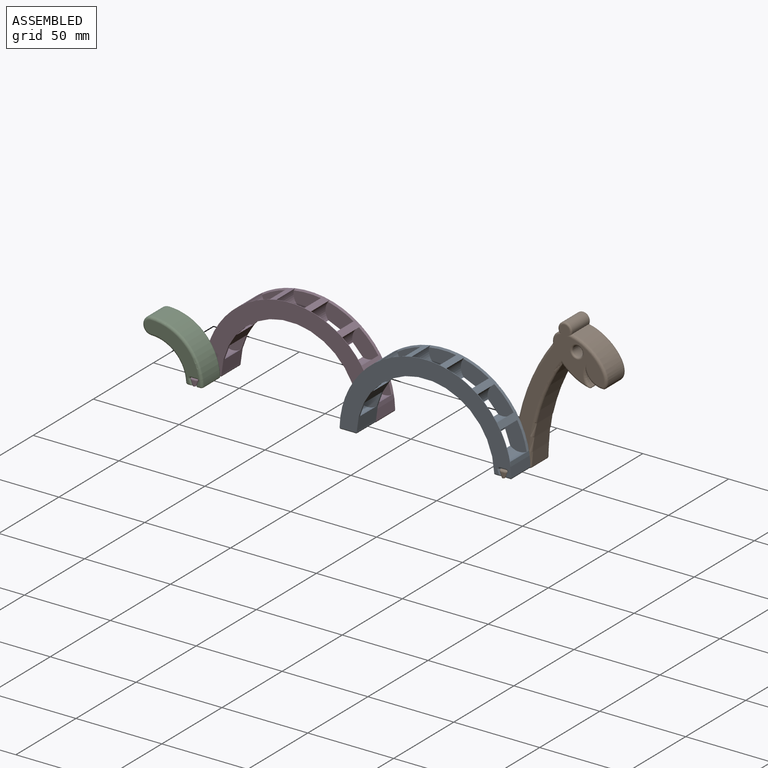
[diagram: assembled view]
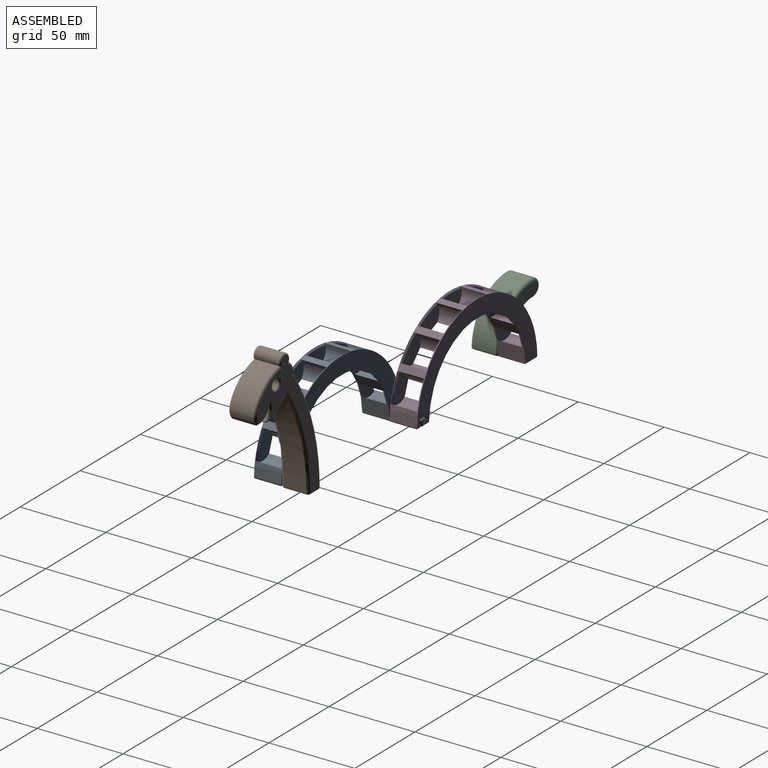
[diagram: assembled view, second angle]
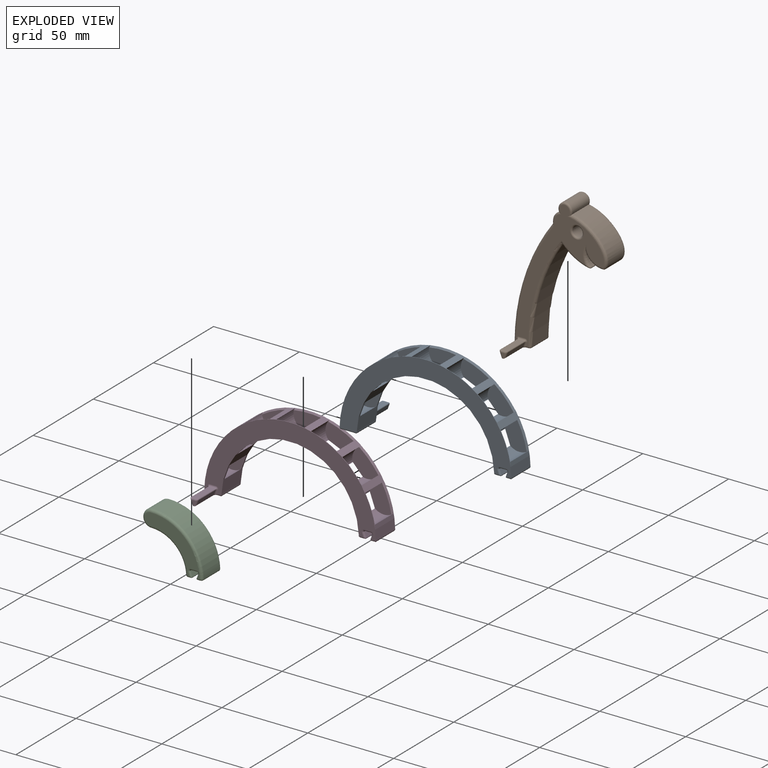
[diagram: exploded view]
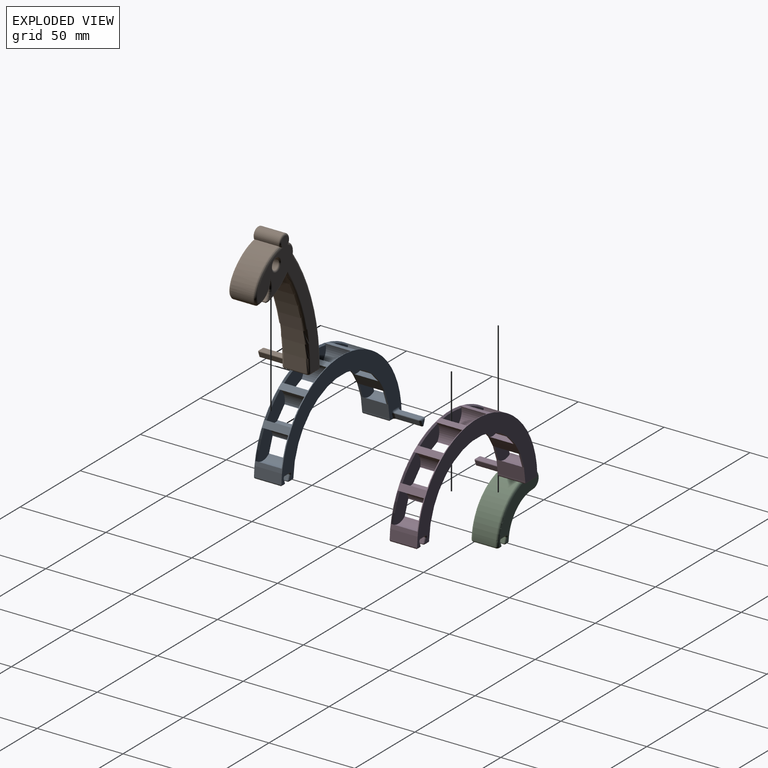
[diagram: exploded view, second angle]
ASSEMBLY  parts=4 mates=3
PART A: 142 faces, bbox 100x32x50.3 mm
  f0: plane 31x8mm, normal (0,0,-1), area 124.3mm2, adj f103,f106,f107,f109,f110,f114,f115,f118
  f1: plane 8.39x1mm, normal (0,0,-1), area 8.4mm2, adj f21,f32,f41,f54
  f2: plane 7.7x3.32mm, normal (-0.4,0,-0.92), area 8.4mm2, adj f21,f33,f38,f82
  f3: plane 8.12x2.95mm, normal (-0.94,0,-0.34), area 8.6mm2, adj f21,f28,f37,f76
  f4: plane 6.1x5.76mm, normal (-0.73,0,-0.69), area 8.4mm2, adj f21,f35,f40,f71
  f5: plane 7.7x3.32mm, normal (0.4,0,-0.92), area 8.4mm2, adj f21,f30,f44,f88
  f6: plane 6.1x5.76mm, normal (0.73,0,-0.69), area 8.4mm2, adj f21,f42,f47,f60
  f7: plane 8.12x2.95mm, normal (0.94,0,-0.34), area 8.6mm2, adj f21,f29,f45,f65
  f8: cylinder r=40mm len=16mm, axis (0,1,0), area 10mm2, adj f9,f21,f29,f122,f124,f126
  f9: plane 99.98x49mm, normal (0,-1,0), area 1364.1mm2, adj f8,f10,f20,f28,f29,f30,f31,f32
  f10: cylinder r=50mm len=99.98mm, axis (0,1,0), area 698.6mm2, adj f9,f21,f50,f51,f56,f57,f61,f62
  f11: plane 14x2.2mm, normal (0,0,-1), area 30.8mm2, adj f12,f137,f139,f141
  f12: cylinder r=0.5mm len=14mm, axis (0,1,0), area 13.4mm2, adj f11,f13,f135,f140
  f13: plane 14x2.86mm, normal (0.94,0,0.34), area 42.6mm2, adj f12,f14,f133,f138
  f14: cylinder r=0.5mm len=14mm, axis (0,1,0), area 13.4mm2, adj f13,f15,f131,f136
  f15: plane 14x3.76mm, normal (0,0,-1), area 52.7mm2, adj f14,f16,f129,f134
  f16: cylinder r=0.5mm len=14mm, axis (0,1,0), area 13.5mm2, adj f15,f17,f127,f132
  f17: plane 14x2.84mm, normal (-0.93,0,0.36), area 42.6mm2, adj f16,f18,f125,f130
  f18: cylinder r=0.5mm len=14mm, axis (0,1,0), area 13.5mm2, adj f17,f19,f123,f128
  f19: plane 14x2.29mm, normal (0,0,-1), area 32mm2, adj f18,f122,f124,f126
  f20: cylinder r=40mm len=16mm, axis (0,1,0), area 10mm2, adj f9,f21,f28,f103,f106,f109
  f21: plane 99.98x49mm, normal (0,1,0), area 1387.5mm2, adj f1,f2,f3,f4,f5,f6,f7,f8
  f22: cylinder r=0.5mm len=14mm, axis (0,1,0), area 13.5mm2, adj f23,f26,f105,f111
  f23: plane 14x2.68mm, normal (-0.94,0,-0.35), area 40mm2, adj f22,f104,f110,f115
  f24: plane 14x2.68mm, normal (0.94,0,-0.35), area 40mm2, adj f25,f117,f119,f121
  f25: cylinder r=0.5mm len=14mm, axis (0,1,0), area 13.5mm2, adj f24,f26,f113,f116
  f26: plane 14x3.56mm, normal (0,0,1), area 49.8mm2, adj f22,f25,f108,f112
  f27: plane 2.82x2.11mm, normal (0,-1,0), area 3mm2, adj f112,f115,f119
  f28: plane 16x7.82mm, normal (-0.99,0,-0.14), area 126.4mm2, adj f3,f9,f20,f21,f36,f72
  f29: plane 16x7.82mm, normal (0.99,0,-0.14), area 126.4mm2, adj f7,f8,f9,f21,f48,f62
  f30: plane 16x3.84mm, normal (0.21,0,-0.98), area 62.9mm2, adj f5,f9,f21,f41,f43,f83
  f31: plane 8.39x1mm, normal (0,0,-1), area 8.4mm2, adj f9,f32,f41,f53
  f32: plane 16x3.86mm, normal (-0.2,0,-0.98), area 62.9mm2, adj f1,f9,f21,f31,f33,f49
  f33: plane 16x3.84mm, normal (-0.21,0,-0.98), area 62.9mm2, adj f2,f9,f21,f32,f34,f77
  f34: plane 7.7x3.32mm, normal (-0.4,0,-0.92), area 8.4mm2, adj f9,f33,f38,f81
  f35: plane 16x3.33mm, normal (-0.85,0,-0.53), area 62.9mm2, adj f4,f9,f21,f37,f39,f66
  f36: plane 8.12x2.95mm, normal (-0.94,0,-0.34), area 8.6mm2, adj f9,f28,f37,f75
  f37: plane 16x3.36mm, normal (-0.85,0,-0.52), area 62.9mm2, adj f3,f9,f21,f35,f36,f74
  f38: plane 16x3.23mm, normal (-0.57,0,-0.82), area 62.9mm2, adj f2,f9,f21,f34,f40,f80
  f39: plane 6.1x5.76mm, normal (-0.73,0,-0.69), area 8.4mm2, adj f9,f35,f40,f70
  f40: plane 16x3.21mm, normal (-0.58,0,-0.82), area 62.9mm2, adj f4,f9,f21,f38,f39,f69
  f41: plane 16x3.86mm, normal (0.2,0,-0.98), area 62.9mm2, adj f1,f9,f21,f30,f31,f52
  f42: plane 16x3.21mm, normal (0.58,0,-0.82), area 62.9mm2, adj f6,f9,f21,f44,f46,f55
  f43: plane 7.7x3.32mm, normal (0.4,0,-0.92), area 8.4mm2, adj f9,f30,f44,f87
  f44: plane 16x3.23mm, normal (0.57,0,-0.82), area 62.9mm2, adj f5,f9,f21,f42,f43,f86
  f45: plane 16x3.36mm, normal (0.85,0,-0.52), area 62.9mm2, adj f7,f9,f21,f47,f48,f63
  f46: plane 6.1x5.76mm, normal (0.73,0,-0.69), area 8.4mm2, adj f9,f42,f47,f59
  f47: plane 16x3.33mm, normal (0.85,0,-0.53), area 62.9mm2, adj f6,f9,f21,f45,f46,f58
  f48: plane 8.12x2.95mm, normal (0.94,0,-0.34), area 8.6mm2, adj f9,f29,f45,f64
  f49: plane 14x0.25mm, normal (0,0,1), area 3.5mm2, adj f32,f50,f53,f54
  f50: cylinder r=8.5mm len=15.5mm, axis (0,1,0), area 155.1mm2, adj f10,f49,f53,f54,f95,f96
  f51: cylinder r=8.5mm len=15.5mm, axis (0,1,0), area 155.1mm2, adj f10,f52,f53,f54,f95,f96
  f52: plane 14x0.25mm, normal (0,0,1), area 3.5mm2, adj f41,f51,f53,f54
  f53: plane 17x9.5mm, normal (0,1,0), area 139.9mm2, adj f31,f49,f50,f51,f52,f95
  f54: plane 17x9.5mm, normal (0,-1,0), area 139.9mm2, adj f1,f49,f50,f51,f52,f96
  f55: plane 14x0.18mm, normal (-0.73,0,0.69), area 3.5mm2, adj f42,f56,f59,f60
  f56: cylinder r=8.5mm len=15.5mm, axis (0,1,0), area 155.1mm2, adj f10,f55,f59,f60,f91,f92
  f57: cylinder r=8.5mm len=15.5mm, axis (0,1,0), area 155.1mm2, adj f10,f58,f59,f60,f91,f92
  f58: plane 14x0.18mm, normal (-0.73,0,0.69), area 3.5mm2, adj f47,f57,f59,f60
  f59: plane 15.63x15.35mm, normal (0,1,0), area 139.9mm2, adj f46,f55,f56,f57,f58,f91
  f60: plane 15.63x15.35mm, normal (0,-1,0), area 139.9mm2, adj f6,f55,f56,f57,f58,f92
  f61: cylinder r=8.5mm len=15.5mm, axis (0,1,0), area 155.1mm2, adj f10,f63,f64,f65,f89,f90
  f62: cylinder r=8.5mm len=15.5mm, axis (0,1,0), area 155.1mm2, adj f10,f29,f64,f65,f89,f90
  f63: plane 14x0.23mm, normal (-0.94,0,0.34), area 3.5mm2, adj f45,f61,f64,f65
  f64: plane 16.88x12.63mm, normal (0,1,0), area 139.9mm2, adj f48,f61,f62,f63,f89
  f65: plane 16.88x12.63mm, normal (0,-1,0), area 139.9mm2, adj f7,f61,f62,f63,f90
  f66: plane 14x0.18mm, normal (0.73,0,0.69), area 3.5mm2, adj f35,f67,f70,f71
  f67: cylinder r=8.5mm len=15.5mm, axis (0,1,0), area 155.1mm2, adj f10,f66,f70,f71,f99,f100
  f68: cylinder r=8.5mm len=15.5mm, axis (0,1,0), area 155.1mm2, adj f10,f69,f70,f71,f99,f100
  f69: plane 14x0.18mm, normal (0.73,0,0.69), area 3.5mm2, adj f40,f68,f70,f71
  f70: plane 15.63x15.35mm, normal (0,1,0), area 139.9mm2, adj f39,f66,f67,f68,f69,f99
  f71: plane 15.63x15.35mm, normal (0,-1,0), area 139.9mm2, adj f4,f66,f67,f68,f69,f100
  f72: cylinder r=8.5mm len=15.5mm, axis (0,1,0), area 155.1mm2, adj f10,f28,f75,f76,f101,f102
  f73: cylinder r=8.5mm len=15.5mm, axis (0,1,0), area 155.1mm2, adj f10,f74,f75,f76,f101,f102
  f74: plane 14x0.23mm, normal (0.94,0,0.34), area 3.5mm2, adj f37,f73,f75,f76
  f75: plane 16.88x12.63mm, normal (0,1,0), area 139.9mm2, adj f36,f72,f73,f74,f102
  f76: plane 16.88x12.63mm, normal (0,-1,0), area 139.9mm2, adj f3,f72,f73,f74,f101
  f77: plane 14x0.23mm, normal (0.4,0,0.92), area 3.5mm2, adj f33,f79,f81,f82
  f78: cylinder r=8.5mm len=15.5mm, axis (0,1,0), area 155.1mm2, adj f10,f80,f81,f82,f97,f98
  f79: cylinder r=8.5mm len=15.5mm, axis (0,1,0), area 155.1mm2, adj f10,f77,f81,f82,f97,f98
  f80: plane 14x0.23mm, normal (0.4,0,0.92), area 3.5mm2, adj f38,f78,f81,f82
  f81: plane 16.78x13.13mm, normal (0,1,0), area 139.9mm2, adj f34,f77,f78,f79,f80,f97
  f82: plane 16.78x13.13mm, normal (0,-1,0), area 139.9mm2, adj f2,f77,f78,f79,f80,f98
  f83: plane 14x0.23mm, normal (-0.4,0,0.92), area 3.5mm2, adj f30,f84,f87,f88
  f84: cylinder r=8.5mm len=15.5mm, axis (0,1,0), area 155.1mm2, adj f10,f83,f87,f88,f93,f94
  f85: cylinder r=8.5mm len=15.5mm, axis (0,1,0), area 155.1mm2, adj f10,f86,f87,f88,f93,f94
  f86: plane 14x0.23mm, normal (-0.4,0,0.92), area 3.5mm2, adj f44,f85,f87,f88
  f87: plane 16.78x13.13mm, normal (0,1,0), area 139.9mm2, adj f43,f83,f84,f85,f86,f93
  f88: plane 16.78x13.13mm, normal (0,-1,0), area 139.9mm2, adj f5,f83,f84,f85,f86,f94
  f89: cone r=49.25mm half-angle=45deg, axis (0,-1,0), area 17.6mm2, adj f10,f61,f62,f64
  f90: cone r=50mm half-angle=45deg, axis (0,1,0), area 17.6mm2, adj f10,f61,f62,f65
  f91: cone r=49.25mm half-angle=45deg, axis (0,-1,0), area 17.6mm2, adj f10,f56,f57,f59
  f92: cone r=50mm half-angle=45deg, axis (0,1,0), area 17.6mm2, adj f10,f56,f57,f60
  f93: cone r=49.25mm half-angle=45deg, axis (0,-1,0), area 17.6mm2, adj f10,f84,f85,f87
  f94: cone r=50mm half-angle=45deg, axis (0,1,0), area 17.6mm2, adj f10,f84,f85,f88
  f95: cone r=49.25mm half-angle=45deg, axis (0,-1,0), area 17.6mm2, adj f10,f50,f51,f53
  f96: cone r=50mm half-angle=45deg, axis (0,1,0), area 17.6mm2, adj f10,f50,f51,f54
  f97: cone r=49.25mm half-angle=45deg, axis (0,-1,0), area 17.6mm2, adj f10,f78,f79,f81
  f98: cone r=50mm half-angle=45deg, axis (0,1,0), area 17.6mm2, adj f10,f78,f79,f82
  f99: cone r=49.25mm half-angle=45deg, axis (0,-1,0), area 17.6mm2, adj f10,f67,f68,f70
  f100: cone r=50mm half-angle=45deg, axis (0,1,0), area 17.6mm2, adj f10,f67,f68,f71
  f101: cone r=50mm half-angle=45deg, axis (0,1,0), area 17.6mm2, adj f10,f72,f73,f76
  f102: cone r=49.25mm half-angle=45deg, axis (0,-1,0), area 17.6mm2, adj f10,f72,f73,f75
  f103: cylinder r=1mm len=2.57mm, axis (-1,0,0), area 3.5mm2, adj f0,f9,f20,f106,f107
  f104: cylinder r=1mm len=3.03mm, axis (-0.35,0,0.94), area 4.1mm2, adj f9,f23,f105,f107
  f105: torus R=1.5mm, axis (0,-1,0), area 2.6mm2, adj f9,f22,f104,f108
  f106: cylinder r=1mm len=16mm, axis (0,1,0), area 23.6mm2, adj f0,f20,f103,f109
  f107: bspline ~2.35x2.23mm, area 3.2mm2, adj f0,f103,f104,f110
  f108: cylinder r=1mm len=3.56mm, axis (1,0,0), area 5.6mm2, adj f9,f26,f105,f113
  f109: cylinder r=1mm len=10mm, axis (1,0,0), area 14.6mm2, adj f0,f20,f21,f106,f114
  f110: cylinder r=1mm len=14.94mm, axis (0,1,0), area 17.6mm2, adj f0,f23,f107,f115
  f111: bspline ~1.44x1.26mm, area 1.1mm2, adj f22,f112,f115
  f112: cylinder r=1mm len=3.56mm, axis (1,0,0), area 4.8mm2, adj f26,f27,f111,f116
  f113: torus R=1.5mm, axis (0,-1,0), area 2.6mm2, adj f9,f25,f108,f117
  f114: cylinder r=1mm len=16mm, axis (0,1,0), area 24.3mm2, adj f0,f9,f10,f21,f109,f118
  f115: cylinder r=1mm len=4mm, axis (-0.35,0,0.94), area 5.1mm2, adj f0,f23,f27,f110,f111,f119
  f116: bspline ~1.44x1.26mm, area 1.1mm2, adj f25,f112,f119
  f117: cylinder r=1mm len=3.03mm, axis (-0.35,0,-0.94), area 4.1mm2, adj f9,f24,f113,f120
  f118: cylinder r=1mm len=2.55mm, axis (-1,0,0), area 3.4mm2, adj f0,f9,f114,f120
  f119: cylinder r=1mm len=4mm, axis (-0.35,0,-0.94), area 5.1mm2, adj f0,f24,f27,f115,f116,f121
  f120: bspline ~2.51x2mm, area 3.2mm2, adj f0,f117,f118,f121
  f121: cylinder r=1mm len=14.94mm, axis (0,1,0), area 17.6mm2, adj f0,f24,f119,f120
  f122: cylinder r=1mm len=3.29mm, axis (-1,0,0), area 4.2mm2, adj f8,f9,f19,f123,f124
  f123: bspline ~1.45x1.26mm, area 1.1mm2, adj f18,f122,f125
  f124: cylinder r=1mm len=16mm, axis (0,1,0), area 23.6mm2, adj f8,f19,f122,f126
  f125: cylinder r=1mm len=3.2mm, axis (0.36,0,0.93), area 4.4mm2, adj f9,f17,f123,f127
  f126: cylinder r=1mm len=3.29mm, axis (1,0,0), area 4.2mm2, adj f8,f19,f21,f124,f128
  f127: torus R=1.5mm, axis (0,-1,0), area 2.6mm2, adj f9,f16,f125,f129
  f128: bspline ~1.45x1.26mm, area 1.1mm2, adj f18,f126,f130
  f129: cylinder r=1mm len=3.76mm, axis (-1,0,0), area 5.9mm2, adj f9,f15,f127,f131
  f130: cylinder r=1mm len=3.2mm, axis (-0.36,0,-0.93), area 4.4mm2, adj f17,f21,f128,f132
  f131: torus R=1.5mm, axis (0,-1,0), area 2.6mm2, adj f9,f14,f129,f133
  f132: torus R=1.5mm, axis (0,-1,0), area 2.6mm2, adj f16,f21,f130,f134
  f133: cylinder r=1mm len=3.2mm, axis (0.34,0,-0.94), area 4.4mm2, adj f9,f13,f131,f135
  f134: cylinder r=1mm len=3.76mm, axis (1,0,0), area 5.9mm2, adj f15,f21,f132,f136
  f135: bspline ~1.43x1.26mm, area 1.1mm2, adj f12,f133,f137
  f136: torus R=1.5mm, axis (0,-1,0), area 2.6mm2, adj f14,f21,f134,f138
  f137: cylinder r=1mm len=3.2mm, axis (-1,0,0), area 4.1mm2, adj f9,f11,f135,f139
  f138: cylinder r=1mm len=3.2mm, axis (-0.34,0,0.94), area 4.4mm2, adj f13,f21,f136,f140
  f139: cylinder r=1mm len=16mm, axis (0,1,0), area 24.3mm2, adj f9,f10,f11,f21,f137,f141
  f140: bspline ~1.43x1.26mm, area 1.1mm2, adj f12,f138,f141
  f141: cylinder r=1mm len=3.2mm, axis (1,0,0), area 4.1mm2, adj f11,f21,f139,f140
PART B: 62 faces, bbox 64x32x83.1 mm
  f0: plane 31x8mm, normal (0,0,-1), area 124mm2, adj f20,f21,f23,f24,f28,f29,f32,f33
  f1: cylinder r=107.22mm len=59mm, axis (0,1,0), area 813.5mm2, adj f2,f21,f49,f56
  f2: extruded ~15.87x13mm, area 239.4mm2, adj f1,f18,f51,f58
  f3: cylinder r=9.17mm len=13mm, axis (0,1,0), area 95.4mm2, adj f4,f18,f54,f61
  f4: cylinder r=10.49mm len=13mm, axis (0,1,0), area 164.5mm2, adj f3,f5,f52,f59
  f5: extruded ~24.14x20.79mm, area 462mm2, adj f4,f6,f50,f57
  f6: cylinder r=4mm len=14mm, axis (0,1,0), area 224.4mm2, adj f5,f7,f38,f41,f50,f57
  f7: extruded ~14x6.85mm, area 115.5mm2, adj f6,f8,f39,f42,f44,f46
  f8: cylinder r=117.22mm len=68.8mm, axis (0,1,0), area 957.2mm2, adj f7,f29,f44,f46
  f9: cylinder r=3mm len=14mm, axis (0,1,0), area 263.9mm2, adj f40,f43
  f10: plane 80.44x51.32mm, normal (0,-1,0), area 832.2mm2, adj f19,f20,f22,f25,f30,f33,f34,f41
  f11: plane 80.44x51.32mm, normal (0,1,0), area 855.6mm2, adj f24,f38,f39,f40,f46,f49,f50,f51
  f12: plane 14x2.68mm, normal (-0.94,0,-0.35), area 40mm2, adj f16,f34,f35,f37
  f13: plane 14x2.68mm, normal (0.94,0,-0.35), area 40mm2, adj f14,f19,f28,f32
  f14: cylinder r=0.5mm len=14mm, axis (0,1,0), area 13.5mm2, adj f13,f15,f22,f27
  f15: plane 14x3.56mm, normal (0,0,1), area 49.8mm2, adj f14,f16,f25,f26
  f16: cylinder r=0.5mm len=14mm, axis (0,1,0), area 13.5mm2, adj f12,f15,f30,f31
  f17: plane 2.82x2.11mm, normal (0,-1,0), area 3mm2, adj f26,f32,f35
  f18: cylinder r=0.5mm len=13mm, axis (0,1,0), area 16mm2, adj f2,f3,f53,f60
  f19: cylinder r=1mm len=3.03mm, axis (0.35,0,0.94), area 3.9mm2, adj f10,f13,f22,f23
  f20: cylinder r=1mm len=1.06mm, axis (-1,0,0), area 1.7mm2, adj f0,f10,f23,f55
  f21: cylinder r=1mm len=13mm, axis (0,1,0), area 20.4mm2, adj f0,f1,f48,f55
  f22: torus R=1.5mm, axis (0,-1,0), area 2.6mm2, adj f10,f14,f19,f25
  f23: bspline ~2.23x2.09mm, area 3.2mm2, adj f0,f19,f20,f28
  f24: cylinder r=1mm len=7mm, axis (1,0,0), area 11mm2, adj f0,f11,f47,f48
  f25: cylinder r=1mm len=3.56mm, axis (-1,0,0), area 5.6mm2, adj f10,f15,f22,f30
  f26: cylinder r=1mm len=3.56mm, axis (1,0,0), area 4.5mm2, adj f15,f17,f27,f31
  f27: bspline ~1.44x1.26mm, area 0.7mm2, adj f14,f26,f32
  f28: cylinder r=1mm len=14.94mm, axis (0,-1,0), area 17.5mm2, adj f0,f13,f23,f32
  f29: cylinder r=1mm len=13mm, axis (0,1,0), area 20.5mm2, adj f0,f8,f45,f47
  f30: torus R=1.5mm, axis (0,-1,0), area 2.6mm2, adj f10,f16,f25,f34
  f31: bspline ~1.44x1.26mm, area 0.7mm2, adj f16,f26,f35
  f32: cylinder r=1mm len=4mm, axis (-0.35,0,-0.94), area 5.1mm2, adj f0,f13,f17,f27,f28,f35
  f33: cylinder r=1mm len=1.06mm, axis (-1,0,0), area 1.7mm2, adj f0,f10,f36,f45
  f34: cylinder r=1mm len=3.03mm, axis (0.35,0,-0.94), area 3.9mm2, adj f10,f12,f30,f36
  f35: cylinder r=1mm len=4mm, axis (-0.35,0,0.94), area 5.1mm2, adj f0,f12,f17,f31,f32,f37
  f36: bspline ~2.51x2mm, area 3.2mm2, adj f0,f33,f34,f37
  f37: cylinder r=1mm len=14.94mm, axis (0,-1,0), area 17.5mm2, adj f0,f12,f35,f36
  f38: torus R=3mm, axis (0,-1,0), area 26.1mm2, adj f6,f11,f39,f50
  f39: bspline ~9.36x5.98mm, area 14.4mm2, adj f7,f11,f38,f46
  f40: torus R=4mm, axis (0,-1,0), area 33.2mm2, adj f9,f11
  f41: torus R=3mm, axis (0,-1,0), area 26.1mm2, adj f6,f10,f42,f57
  f42: bspline ~8.76x6.03mm, area 14.4mm2, adj f7,f10,f41,f44
  f43: torus R=4mm, axis (0,-1,0), area 33.2mm2, adj f9,f10
  f44: torus R=115.72mm, axis (0,-1,0), area 172.4mm2, adj f7,f8,f10,f42,f45
  f45: bspline ~1.76x1.72mm, area 2.8mm2, adj f0,f29,f33,f44
  f46: torus R=115.72mm, axis (0,-1,0), area 172.4mm2, adj f7,f8,f11,f39,f47
  f47: bspline ~1.76x1.71mm, area 2.8mm2, adj f0,f24,f29,f46
  f48: bspline ~1.76x1.71mm, area 2.8mm2, adj f0,f21,f24,f49
  f49: torus R=108.72mm, axis (0,-1,0), area 150.5mm2, adj f1,f11,f48,f51
  f50: bspline ~24.86x23.65mm, area 81.4mm2, adj f5,f6,f11,f38,f52
  f51: bspline ~19.95x13.01mm, area 41.8mm2, adj f2,f11,f49,f53
  f52: torus R=8.99mm, axis (0,-1,0), area 34.2mm2, adj f4,f11,f50,f54
  f53: bspline ~3.57x2.24mm, area 1.8mm2, adj f18,f51,f54
  f54: torus R=10.67mm, axis (0,-1,0), area 22mm2, adj f3,f11,f52,f53
  f55: bspline ~1.76x1.71mm, area 2.8mm2, adj f0,f20,f21,f56
  f56: torus R=108.72mm, axis (0,-1,0), area 150.5mm2, adj f1,f10,f55,f58
  f57: bspline ~24.81x23.55mm, area 81.4mm2, adj f5,f6,f10,f41,f59
  f58: bspline ~19.83x12.62mm, area 41.8mm2, adj f2,f10,f56,f60
  f59: torus R=8.99mm, axis (0,-1,0), area 34.2mm2, adj f4,f10,f57,f61
  f60: bspline ~3.57x2.24mm, area 1.8mm2, adj f18,f58,f61
  f61: torus R=10.67mm, axis (0,-1,0), area 22mm2, adj f3,f10,f59,f60
PART C: 50 faces, bbox 37.5x16.1x32.5 mm
  f0: plane 2.27x1.03mm, normal (0,1,0), area 1.2mm2, adj f25,f27,f31,f48
  f1: plane 2.27x1.03mm, normal (0,-1,0), area 1.2mm2, adj f30,f32,f35,f41
  f2: plane 14x2.24mm, normal (0,0,-1), area 31.2mm2, adj f5,f16,f18,f20,f36,f43
  f3: plane 14x2.26mm, normal (0,0,-1), area 31.5mm2, adj f11,f31,f33,f35,f42,f49
  f4: cylinder r=20mm len=19.98mm, axis (0,-1,0), area 396mm2, adj f13,f18,f37,f44
  f5: cylinder r=0.5mm len=14mm, axis (0,-1,0), area 13.4mm2, adj f2,f6,f17,f22
  f6: plane 14x2.86mm, normal (0.94,0,0.34), area 42.6mm2, adj f5,f7,f19,f24
  f7: cylinder r=0.5mm len=14mm, axis (0,-1,0), area 13.4mm2, adj f6,f8,f21,f26
  f8: plane 14x3.76mm, normal (0,0,-1), area 52.7mm2, adj f7,f9,f23,f28
  f9: cylinder r=0.5mm len=14mm, axis (0,-1,0), area 13.5mm2, adj f8,f10,f25,f30
  f10: plane 14x2.84mm, normal (-0.93,0,0.36), area 42.6mm2, adj f9,f11,f27,f32
  f11: cylinder r=0.5mm len=14mm, axis (0,-1,0), area 13.5mm2, adj f3,f10,f29,f34
  f12: cylinder r=30mm len=29.98mm, axis (0,-1,0), area 599.2mm2, adj f13,f33,f39,f40,f41,f46,f47,f48
  f13: cylinder r=5mm len=13mm, axis (0,-1,0), area 204.2mm2, adj f4,f12,f38,f45
  f14: plane 31.64x27.5mm, normal (0,1,0), area 260.8mm2, adj f16,f19,f21,f23,f25,f44,f45,f46
  f15: plane 31.64x27.5mm, normal (0,-1,0), area 260.8mm2, adj f20,f24,f26,f28,f30,f37,f38,f39
  f16: cylinder r=1mm len=1.73mm, axis (-1,0,0), area 2.2mm2, adj f2,f14,f17,f43
  f17: bspline ~1.43x1.07mm, area 1.1mm2, adj f5,f16,f19
  f18: cylinder r=1mm len=13mm, axis (0,-1,0), area 19.8mm2, adj f2,f4,f36,f43
  f19: cylinder r=1mm len=3.2mm, axis (0.34,0,-0.94), area 4.2mm2, adj f6,f14,f17,f21
  f20: cylinder r=1mm len=1.73mm, axis (1,0,0), area 2.2mm2, adj f2,f15,f22,f36
  f21: torus R=1.5mm, axis (0,-1,0), area 2.6mm2, adj f7,f14,f19,f23
  f22: bspline ~1.43x1.07mm, area 1.1mm2, adj f5,f20,f24
  f23: cylinder r=1mm len=3.76mm, axis (-1,0,0), area 5.9mm2, adj f8,f14,f21,f25
  f24: cylinder r=1mm len=3.2mm, axis (-0.34,0,0.94), area 4.2mm2, adj f6,f15,f22,f26
  f25: torus R=1.5mm, axis (0,-1,0), area 2.6mm2, adj f0,f9,f14,f23,f27,f47
  f26: torus R=1.5mm, axis (0,-1,0), area 2.6mm2, adj f7,f15,f24,f28
  f27: cylinder r=1mm len=3.2mm, axis (0.36,0,0.93), area 4.2mm2, adj f0,f10,f25,f29
  f28: cylinder r=1mm len=3.76mm, axis (1,0,0), area 5.9mm2, adj f8,f15,f26,f30
  f29: bspline ~1.45x1.07mm, area 1.1mm2, adj f11,f27,f31
  f30: torus R=1.5mm, axis (0,-1,0), area 2.6mm2, adj f1,f9,f15,f28,f32,f40
  f31: cylinder r=1mm len=1.76mm, axis (-1,0,0), area 2.2mm2, adj f0,f3,f29,f49
  f32: cylinder r=1mm len=3.2mm, axis (-0.36,0,-0.93), area 4.2mm2, adj f1,f10,f30,f34
  f33: cylinder r=1mm len=13mm, axis (0,-1,0), area 20.9mm2, adj f3,f12,f42,f49
  f34: bspline ~1.45x1.07mm, area 1.1mm2, adj f11,f32,f35
  f35: cylinder r=1mm len=1.76mm, axis (1,0,0), area 2.2mm2, adj f1,f3,f34,f42
  f36: bspline ~1.84x1.82mm, area 2.7mm2, adj f2,f18,f20,f37
  f37: torus R=21.5mm, axis (0,-1,0), area 73.8mm2, adj f4,f15,f36,f38
  f38: torus R=3.5mm, axis (0,-1,0), area 33mm2, adj f13,f15,f37,f39
  f39: torus R=28.5mm, axis (0,-1,0), area 98mm2, adj f12,f15,f38,f40
  f40: bspline ~1.76x1.76mm, area 2.9mm2, adj f12,f30,f39,f41
  f41: torus R=28.5mm, axis (0,-1,0), area 5.6mm2, adj f1,f12,f40,f42
  f42: bspline ~1.79x1.72mm, area 2.9mm2, adj f3,f33,f35,f41
  f43: bspline ~1.84x1.82mm, area 2.7mm2, adj f2,f16,f18,f44
  f44: torus R=21.5mm, axis (0,-1,0), area 73.8mm2, adj f4,f14,f43,f45
  f45: torus R=3.5mm, axis (0,-1,0), area 33mm2, adj f13,f14,f44,f46
  f46: torus R=28.5mm, axis (0,-1,0), area 98mm2, adj f12,f14,f45,f47
  f47: bspline ~1.76x1.76mm, area 2.9mm2, adj f12,f25,f46,f48
  f48: torus R=28.5mm, axis (0,-1,0), area 5.6mm2, adj f0,f12,f47,f49
  f49: bspline ~1.77x1.75mm, area 2.9mm2, adj f3,f31,f33,f48
PART D: 142 faces, bbox 100x32x50.3 mm
  f0: plane 31x8mm, normal (0,0,-1), area 124.3mm2, adj f103,f106,f107,f109,f110,f114,f115,f118
  f1: plane 8.39x1mm, normal (0,0,-1), area 8.4mm2, adj f21,f32,f41,f54
  f2: plane 7.7x3.32mm, normal (-0.4,0,-0.92), area 8.4mm2, adj f21,f33,f38,f82
  f3: plane 8.12x2.95mm, normal (-0.94,0,-0.34), area 8.6mm2, adj f21,f28,f37,f76
  f4: plane 6.1x5.76mm, normal (-0.73,0,-0.69), area 8.4mm2, adj f21,f35,f40,f71
  f5: plane 7.7x3.32mm, normal (0.4,0,-0.92), area 8.4mm2, adj f21,f30,f44,f88
  f6: plane 6.1x5.76mm, normal (0.73,0,-0.69), area 8.4mm2, adj f21,f42,f47,f60
  f7: plane 8.12x2.95mm, normal (0.94,0,-0.34), area 8.6mm2, adj f21,f29,f45,f65
  f8: cylinder r=40mm len=16mm, axis (0,-1,0), area 10mm2, adj f9,f21,f29,f122,f124,f126
  f9: plane 99.98x49mm, normal (0,1,0), area 1364.1mm2, adj f8,f10,f20,f28,f29,f30,f31,f32
  f10: cylinder r=50mm len=99.98mm, axis (0,-1,0), area 698.6mm2, adj f9,f21,f50,f51,f56,f57,f61,f62
  f11: plane 14x2.2mm, normal (0,0,-1), area 30.8mm2, adj f12,f137,f139,f141
  f12: cylinder r=0.5mm len=14mm, axis (0,-1,0), area 13.4mm2, adj f11,f13,f135,f140
  f13: plane 14x2.86mm, normal (0.94,0,0.34), area 42.6mm2, adj f12,f14,f133,f138
  f14: cylinder r=0.5mm len=14mm, axis (0,-1,0), area 13.4mm2, adj f13,f15,f131,f136
  f15: plane 14x3.76mm, normal (0,0,-1), area 52.7mm2, adj f14,f16,f129,f134
  f16: cylinder r=0.5mm len=14mm, axis (0,-1,0), area 13.5mm2, adj f15,f17,f127,f132
  f17: plane 14x2.84mm, normal (-0.93,0,0.36), area 42.6mm2, adj f16,f18,f125,f130
  f18: cylinder r=0.5mm len=14mm, axis (0,-1,0), area 13.5mm2, adj f17,f19,f123,f128
  f19: plane 14x2.29mm, normal (0,0,-1), area 32mm2, adj f18,f122,f124,f126
  f20: cylinder r=40mm len=16mm, axis (0,-1,0), area 10mm2, adj f9,f21,f28,f103,f106,f109
  f21: plane 99.98x49mm, normal (0,-1,0), area 1387.5mm2, adj f1,f2,f3,f4,f5,f6,f7,f8
  f22: cylinder r=0.5mm len=14mm, axis (0,-1,0), area 13.5mm2, adj f23,f26,f105,f111
  f23: plane 14x2.68mm, normal (-0.94,0,-0.35), area 40mm2, adj f22,f104,f110,f115
  f24: plane 14x2.68mm, normal (0.94,0,-0.35), area 40mm2, adj f25,f117,f119,f121
  f25: cylinder r=0.5mm len=14mm, axis (0,-1,0), area 13.5mm2, adj f24,f26,f113,f116
  f26: plane 14x3.56mm, normal (0,0,1), area 49.8mm2, adj f22,f25,f108,f112
  f27: plane 2.82x2.11mm, normal (0,1,0), area 3mm2, adj f112,f115,f119
  f28: plane 16x7.82mm, normal (-0.99,0,-0.14), area 126.4mm2, adj f3,f9,f20,f21,f36,f72
  f29: plane 16x7.82mm, normal (0.99,0,-0.14), area 126.4mm2, adj f7,f8,f9,f21,f48,f62
  f30: plane 16x3.84mm, normal (0.21,0,-0.98), area 62.9mm2, adj f5,f9,f21,f41,f43,f83
  f31: plane 8.39x1mm, normal (0,0,-1), area 8.4mm2, adj f9,f32,f41,f53
  f32: plane 16x3.86mm, normal (-0.2,0,-0.98), area 62.9mm2, adj f1,f9,f21,f31,f33,f49
  f33: plane 16x3.84mm, normal (-0.21,0,-0.98), area 62.9mm2, adj f2,f9,f21,f32,f34,f77
  f34: plane 7.7x3.32mm, normal (-0.4,0,-0.92), area 8.4mm2, adj f9,f33,f38,f81
  f35: plane 16x3.33mm, normal (-0.85,0,-0.53), area 62.9mm2, adj f4,f9,f21,f37,f39,f66
  f36: plane 8.12x2.95mm, normal (-0.94,0,-0.34), area 8.6mm2, adj f9,f28,f37,f75
  f37: plane 16x3.36mm, normal (-0.85,0,-0.52), area 62.9mm2, adj f3,f9,f21,f35,f36,f74
  f38: plane 16x3.23mm, normal (-0.57,0,-0.82), area 62.9mm2, adj f2,f9,f21,f34,f40,f80
  f39: plane 6.1x5.76mm, normal (-0.73,0,-0.69), area 8.4mm2, adj f9,f35,f40,f70
  f40: plane 16x3.21mm, normal (-0.58,0,-0.82), area 62.9mm2, adj f4,f9,f21,f38,f39,f69
  f41: plane 16x3.86mm, normal (0.2,0,-0.98), area 62.9mm2, adj f1,f9,f21,f30,f31,f52
  f42: plane 16x3.21mm, normal (0.58,0,-0.82), area 62.9mm2, adj f6,f9,f21,f44,f46,f55
  f43: plane 7.7x3.32mm, normal (0.4,0,-0.92), area 8.4mm2, adj f9,f30,f44,f87
  f44: plane 16x3.23mm, normal (0.57,0,-0.82), area 62.9mm2, adj f5,f9,f21,f42,f43,f86
  f45: plane 16x3.36mm, normal (0.85,0,-0.52), area 62.9mm2, adj f7,f9,f21,f47,f48,f63
  f46: plane 6.1x5.76mm, normal (0.73,0,-0.69), area 8.4mm2, adj f9,f42,f47,f59
  f47: plane 16x3.33mm, normal (0.85,0,-0.53), area 62.9mm2, adj f6,f9,f21,f45,f46,f58
  f48: plane 8.12x2.95mm, normal (0.94,0,-0.34), area 8.6mm2, adj f9,f29,f45,f64
  f49: plane 14x0.25mm, normal (0,0,1), area 3.5mm2, adj f32,f50,f53,f54
  f50: cylinder r=8.5mm len=15.5mm, axis (0,-1,0), area 155.1mm2, adj f10,f49,f53,f54,f95,f96
  f51: cylinder r=8.5mm len=15.5mm, axis (0,-1,0), area 155.1mm2, adj f10,f52,f53,f54,f95,f96
  f52: plane 14x0.25mm, normal (0,0,1), area 3.5mm2, adj f41,f51,f53,f54
  f53: plane 17x9.5mm, normal (0,-1,0), area 139.9mm2, adj f31,f49,f50,f51,f52,f95
  f54: plane 17x9.5mm, normal (0,1,0), area 139.9mm2, adj f1,f49,f50,f51,f52,f96
  f55: plane 14x0.18mm, normal (-0.73,0,0.69), area 3.5mm2, adj f42,f56,f59,f60
  f56: cylinder r=8.5mm len=15.5mm, axis (0,-1,0), area 155.1mm2, adj f10,f55,f59,f60,f91,f92
  f57: cylinder r=8.5mm len=15.5mm, axis (0,-1,0), area 155.1mm2, adj f10,f58,f59,f60,f91,f92
  f58: plane 14x0.18mm, normal (-0.73,0,0.69), area 3.5mm2, adj f47,f57,f59,f60
  f59: plane 15.63x15.35mm, normal (0,-1,0), area 139.9mm2, adj f46,f55,f56,f57,f58,f91
  f60: plane 15.63x15.35mm, normal (0,1,0), area 139.9mm2, adj f6,f55,f56,f57,f58,f92
  f61: cylinder r=8.5mm len=15.5mm, axis (0,-1,0), area 155.1mm2, adj f10,f63,f64,f65,f89,f90
  f62: cylinder r=8.5mm len=15.5mm, axis (0,-1,0), area 155.1mm2, adj f10,f29,f64,f65,f89,f90
  f63: plane 14x0.23mm, normal (-0.94,0,0.34), area 3.5mm2, adj f45,f61,f64,f65
  f64: plane 16.88x12.63mm, normal (0,-1,0), area 139.9mm2, adj f48,f61,f62,f63,f89
  f65: plane 16.88x12.63mm, normal (0,1,0), area 139.9mm2, adj f7,f61,f62,f63,f90
  f66: plane 14x0.18mm, normal (0.73,0,0.69), area 3.5mm2, adj f35,f67,f70,f71
  f67: cylinder r=8.5mm len=15.5mm, axis (0,-1,0), area 155.1mm2, adj f10,f66,f70,f71,f99,f100
  f68: cylinder r=8.5mm len=15.5mm, axis (0,-1,0), area 155.1mm2, adj f10,f69,f70,f71,f99,f100
  f69: plane 14x0.18mm, normal (0.73,0,0.69), area 3.5mm2, adj f40,f68,f70,f71
  f70: plane 15.63x15.35mm, normal (0,-1,0), area 139.9mm2, adj f39,f66,f67,f68,f69,f99
  f71: plane 15.63x15.35mm, normal (0,1,0), area 139.9mm2, adj f4,f66,f67,f68,f69,f100
  f72: cylinder r=8.5mm len=15.5mm, axis (0,-1,0), area 155.1mm2, adj f10,f28,f75,f76,f101,f102
  f73: cylinder r=8.5mm len=15.5mm, axis (0,-1,0), area 155.1mm2, adj f10,f74,f75,f76,f101,f102
  f74: plane 14x0.23mm, normal (0.94,0,0.34), area 3.5mm2, adj f37,f73,f75,f76
  f75: plane 16.88x12.63mm, normal (0,-1,0), area 139.9mm2, adj f36,f72,f73,f74,f102
  f76: plane 16.88x12.63mm, normal (0,1,0), area 139.9mm2, adj f3,f72,f73,f74,f101
  f77: plane 14x0.23mm, normal (0.4,0,0.92), area 3.5mm2, adj f33,f79,f81,f82
  f78: cylinder r=8.5mm len=15.5mm, axis (0,-1,0), area 155.1mm2, adj f10,f80,f81,f82,f97,f98
  f79: cylinder r=8.5mm len=15.5mm, axis (0,-1,0), area 155.1mm2, adj f10,f77,f81,f82,f97,f98
  f80: plane 14x0.23mm, normal (0.4,0,0.92), area 3.5mm2, adj f38,f78,f81,f82
  f81: plane 16.78x13.13mm, normal (0,-1,0), area 139.9mm2, adj f34,f77,f78,f79,f80,f97
  f82: plane 16.78x13.13mm, normal (0,1,0), area 139.9mm2, adj f2,f77,f78,f79,f80,f98
  f83: plane 14x0.23mm, normal (-0.4,0,0.92), area 3.5mm2, adj f30,f84,f87,f88
  f84: cylinder r=8.5mm len=15.5mm, axis (0,-1,0), area 155.1mm2, adj f10,f83,f87,f88,f93,f94
  f85: cylinder r=8.5mm len=15.5mm, axis (0,-1,0), area 155.1mm2, adj f10,f86,f87,f88,f93,f94
  f86: plane 14x0.23mm, normal (-0.4,0,0.92), area 3.5mm2, adj f44,f85,f87,f88
  f87: plane 16.78x13.13mm, normal (0,-1,0), area 139.9mm2, adj f43,f83,f84,f85,f86,f93
  f88: plane 16.78x13.13mm, normal (0,1,0), area 139.9mm2, adj f5,f83,f84,f85,f86,f94
  f89: cone r=49.25mm half-angle=45deg, axis (0,1,0), area 17.6mm2, adj f10,f61,f62,f64
  f90: cone r=50mm half-angle=45deg, axis (0,-1,0), area 17.6mm2, adj f10,f61,f62,f65
  f91: cone r=49.25mm half-angle=45deg, axis (0,1,0), area 17.6mm2, adj f10,f56,f57,f59
  f92: cone r=50mm half-angle=45deg, axis (0,-1,0), area 17.6mm2, adj f10,f56,f57,f60
  f93: cone r=49.25mm half-angle=45deg, axis (0,1,0), area 17.6mm2, adj f10,f84,f85,f87
  f94: cone r=50mm half-angle=45deg, axis (0,-1,0), area 17.6mm2, adj f10,f84,f85,f88
  f95: cone r=49.25mm half-angle=45deg, axis (0,1,0), area 17.6mm2, adj f10,f50,f51,f53
  f96: cone r=50mm half-angle=45deg, axis (0,-1,0), area 17.6mm2, adj f10,f50,f51,f54
  f97: cone r=49.25mm half-angle=45deg, axis (0,1,0), area 17.6mm2, adj f10,f78,f79,f81
  f98: cone r=50mm half-angle=45deg, axis (0,-1,0), area 17.6mm2, adj f10,f78,f79,f82
  f99: cone r=49.25mm half-angle=45deg, axis (0,1,0), area 17.6mm2, adj f10,f67,f68,f70
  f100: cone r=50mm half-angle=45deg, axis (0,-1,0), area 17.6mm2, adj f10,f67,f68,f71
  f101: cone r=50mm half-angle=45deg, axis (0,-1,0), area 17.6mm2, adj f10,f72,f73,f76
  f102: cone r=49.25mm half-angle=45deg, axis (0,1,0), area 17.6mm2, adj f10,f72,f73,f75
  f103: cylinder r=1mm len=2.57mm, axis (-1,0,0), area 3.5mm2, adj f0,f9,f20,f106,f107
  f104: cylinder r=1mm len=3.03mm, axis (-0.35,0,0.94), area 4.1mm2, adj f9,f23,f105,f107
  f105: torus R=1.5mm, axis (0,1,0), area 2.6mm2, adj f9,f22,f104,f108
  f106: cylinder r=1mm len=16mm, axis (0,-1,0), area 23.6mm2, adj f0,f20,f103,f109
  f107: bspline ~2.35x2.23mm, area 3.2mm2, adj f0,f103,f104,f110
  f108: cylinder r=1mm len=3.56mm, axis (1,0,0), area 5.6mm2, adj f9,f26,f105,f113
  f109: cylinder r=1mm len=10mm, axis (1,0,0), area 14.6mm2, adj f0,f20,f21,f106,f114
  f110: cylinder r=1mm len=14.94mm, axis (0,-1,0), area 17.6mm2, adj f0,f23,f107,f115
  f111: bspline ~1.44x1.26mm, area 1.1mm2, adj f22,f112,f115
  f112: cylinder r=1mm len=3.56mm, axis (1,0,0), area 4.8mm2, adj f26,f27,f111,f116
  f113: torus R=1.5mm, axis (0,1,0), area 2.6mm2, adj f9,f25,f108,f117
  f114: cylinder r=1mm len=16mm, axis (0,-1,0), area 24.3mm2, adj f0,f9,f10,f21,f109,f118
  f115: cylinder r=1mm len=4mm, axis (-0.35,0,0.94), area 5.1mm2, adj f0,f23,f27,f110,f111,f119
  f116: bspline ~1.44x1.26mm, area 1.1mm2, adj f25,f112,f119
  f117: cylinder r=1mm len=3.03mm, axis (-0.35,0,-0.94), area 4.1mm2, adj f9,f24,f113,f120
  f118: cylinder r=1mm len=2.55mm, axis (-1,0,0), area 3.4mm2, adj f0,f9,f114,f120
  f119: cylinder r=1mm len=4mm, axis (-0.35,0,-0.94), area 5.1mm2, adj f0,f24,f27,f115,f116,f121
  f120: bspline ~2.14x2mm, area 3.2mm2, adj f0,f117,f118,f121
  f121: cylinder r=1mm len=14.94mm, axis (0,-1,0), area 17.6mm2, adj f0,f24,f119,f120
  f122: cylinder r=1mm len=3.29mm, axis (-1,0,0), area 4.2mm2, adj f8,f9,f19,f123,f124
  f123: bspline ~1.45x1.26mm, area 1.1mm2, adj f18,f122,f125
  f124: cylinder r=1mm len=16mm, axis (0,-1,0), area 23.6mm2, adj f8,f19,f122,f126
  f125: cylinder r=1mm len=3.2mm, axis (0.36,0,0.93), area 4.4mm2, adj f9,f17,f123,f127
  f126: cylinder r=1mm len=3.29mm, axis (1,0,0), area 4.2mm2, adj f8,f19,f21,f124,f128
  f127: torus R=1.5mm, axis (0,1,0), area 2.6mm2, adj f9,f16,f125,f129
  f128: bspline ~1.45x1.26mm, area 1.1mm2, adj f18,f126,f130
  f129: cylinder r=1mm len=3.76mm, axis (-1,0,0), area 5.9mm2, adj f9,f15,f127,f131
  f130: cylinder r=1mm len=3.2mm, axis (-0.36,0,-0.93), area 4.4mm2, adj f17,f21,f128,f132
  f131: torus R=1.5mm, axis (0,1,0), area 2.6mm2, adj f9,f14,f129,f133
  f132: torus R=1.5mm, axis (0,1,0), area 2.6mm2, adj f16,f21,f130,f134
  f133: cylinder r=1mm len=3.2mm, axis (0.34,0,-0.94), area 4.4mm2, adj f9,f13,f131,f135
  f134: cylinder r=1mm len=3.76mm, axis (1,0,0), area 5.9mm2, adj f15,f21,f132,f136
  f135: bspline ~1.43x1.26mm, area 1.1mm2, adj f12,f133,f137
  f136: torus R=1.5mm, axis (0,1,0), area 2.6mm2, adj f14,f21,f134,f138
  f137: cylinder r=1mm len=3.2mm, axis (-1,0,0), area 4.1mm2, adj f9,f11,f135,f139
  f138: cylinder r=1mm len=3.2mm, axis (-0.34,0,0.94), area 4.4mm2, adj f13,f21,f136,f140
  f139: cylinder r=1mm len=16mm, axis (0,-1,0), area 24.3mm2, adj f9,f10,f11,f21,f137,f141
  f140: bspline ~1.43x1.26mm, area 1.1mm2, adj f12,f138,f141
  f141: cylinder r=1mm len=3.2mm, axis (1,0,0), area 4.1mm2, adj f11,f21,f139,f140
PLACE A rot(axis=(0,0,1),180deg) t=(-54.45,3.49,11.12)mm
PLACE B t=(26.05,35.49,10.72)mm
PLACE C t=(-43.45,3.49,10.72)mm
PLACE D rot(axis=(0,0,1),180deg) t=(-144.46,55.49,10.92)mm
MATE slider B.f15 <-> A.f15  axis (0,0,1) through (41.05,11.49,14.72)mm
MATE slider D.f26 <-> C.f8  axis (0,0,1) through (-138.96,11.49,14.92)mm
MATE slider A.f26 <-> D.f15  axis (0,0,1) through (-48.95,27.49,15.12)mm
